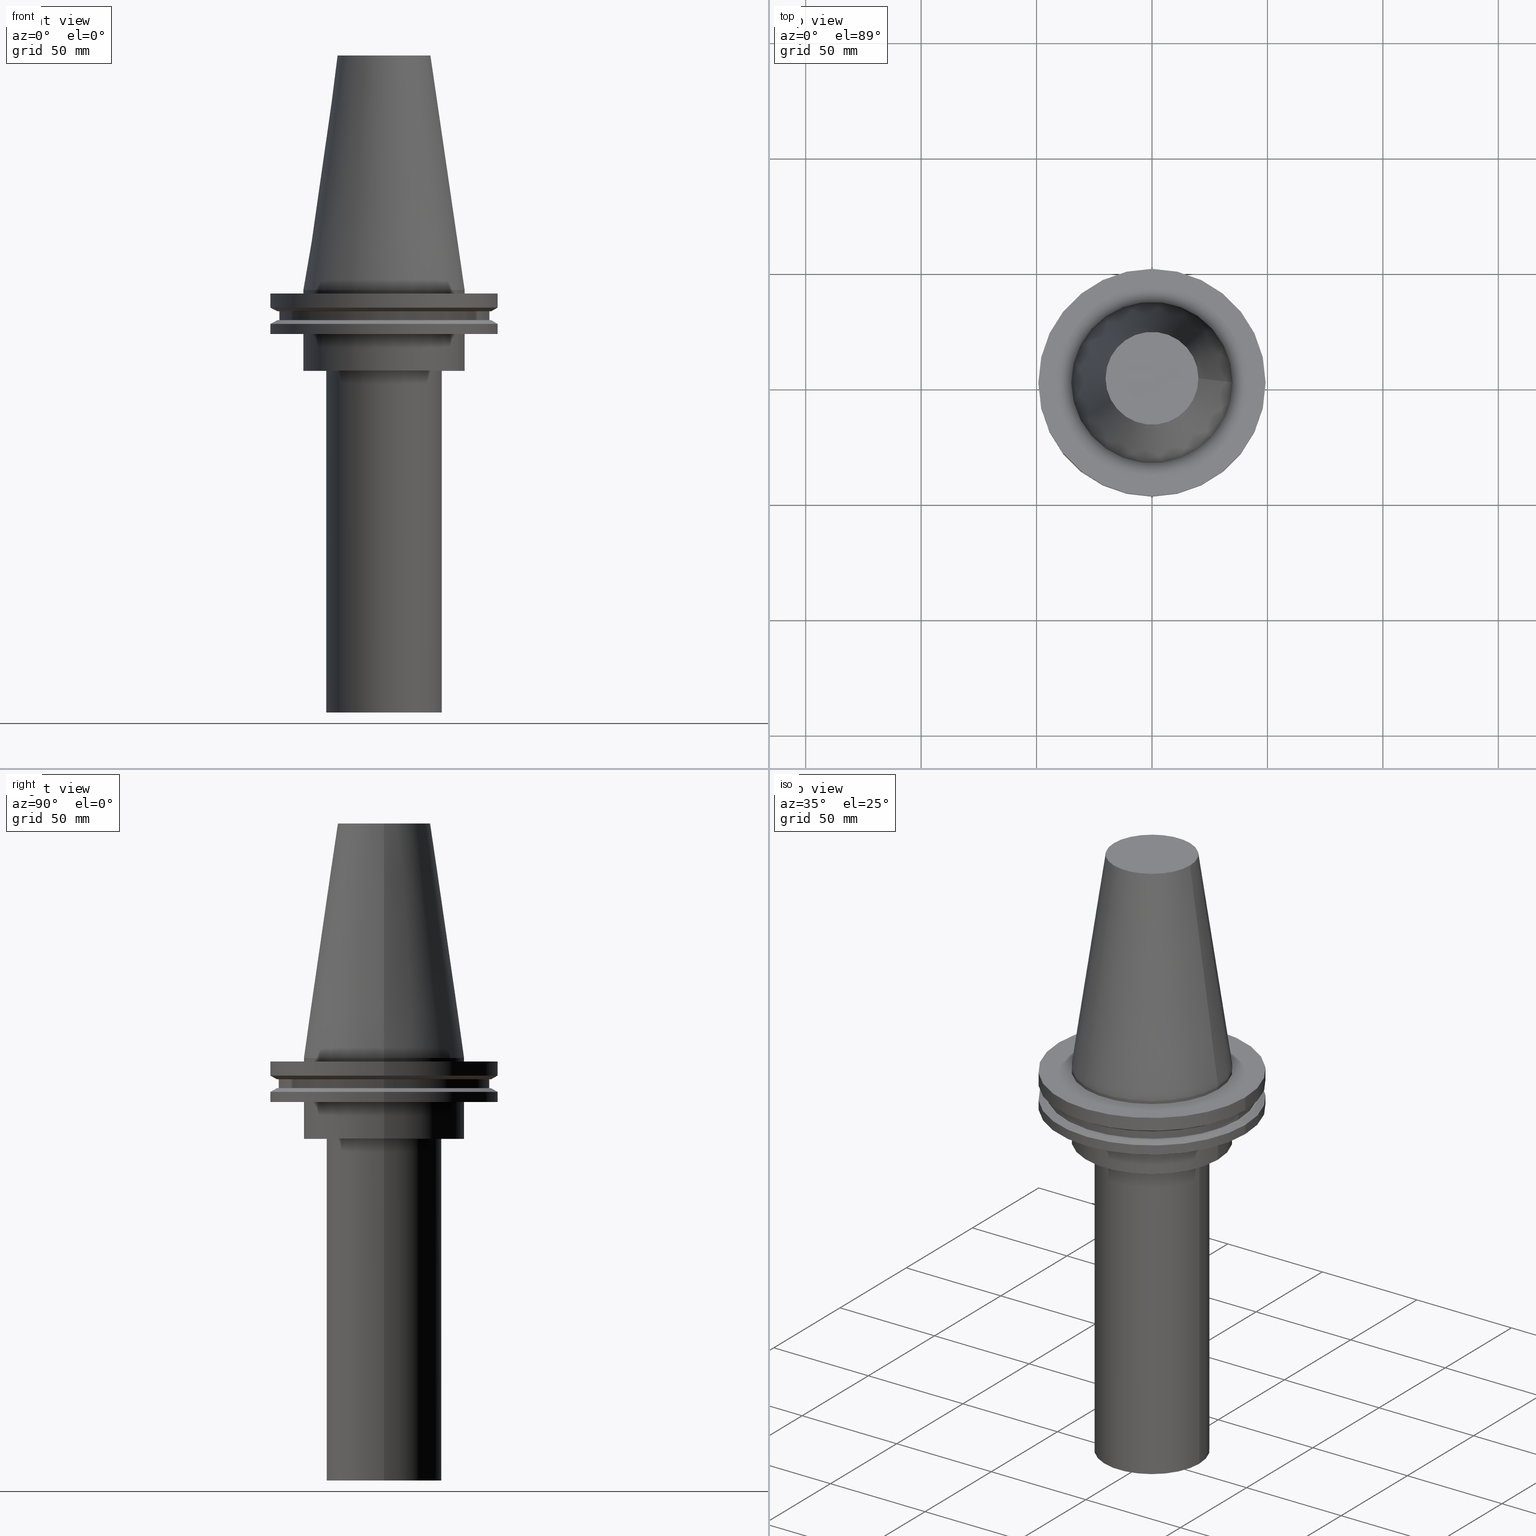
[diagram: canonical four-view strip — front | top / right | iso, engineering-drawing reading convention]
A machine part, canonical four-view strip (front | top / right | iso — engineering-drawing reading convention). The complete STEP part file that produces these views, byte-faithful:
ISO-10303-21;
HEADER;
FILE_DESCRIPTION (( 'STEP AP203' ),
    '1' );
FILE_NAME ('11.326.655.stp',
    '2022-03-09T14:52:03',
    ( '' ),
    ( '' ),
    'SwSTEP 2.0',
    'SolidWorks 2021',
    '' );
FILE_SCHEMA (( 'CONFIG_CONTROL_DESIGN' ));
ENDSEC;

DATA;
#1 = CARTESIAN_POINT ( 'NONE',  ( 49.21499999999999631, 0.000000000000000000, -1.499999999999987566 ) ) ;
#2 = ADVANCED_FACE ( 'NONE', ( #131, #9 ), #220, .T. ) ;
#3 = ORIENTED_EDGE ( 'NONE', *, *, #154, .T. ) ;
#4 = EDGE_LOOP ( 'NONE', ( #249 ) ) ;
#5 = APPLICATION_CONTEXT ( 'configuration controlled 3d designs of mechanical parts and assemblies' ) ;
#6 = DATE_AND_TIME ( #63, #213 ) ;
#7 = FACE_OUTER_BOUND ( 'NONE', #60, .T. ) ;
#8 = CALENDAR_DATE ( 2022, 9, 3 ) ;
#9 = FACE_OUTER_BOUND ( 'NONE', #312, .T. ) ;
#10 = ORIENTED_EDGE ( 'NONE', *, *, #271, .F. ) ;
#11 = DIRECTION ( 'NONE',  ( 1.000000000000000000, 0.000000000000000000, 0.000000000000000000 ) ) ;
#12 =( NAMED_UNIT ( * ) SI_UNIT ( $, .STERADIAN. ) SOLID_ANGLE_UNIT ( ) );
#13 = FACE_OUTER_BOUND ( 'NONE', #174, .T. ) ;
#14 = VERTEX_POINT ( 'NONE', #305 ) ;
#15 = CC_DESIGN_DATE_AND_TIME_ASSIGNMENT ( #126, #245, ( #178 ) ) ;
#16 = AXIS2_PLACEMENT_3D ( 'NONE', #20, #385, #113 ) ;
#17 = DIRECTION ( 'NONE',  ( -0.000000000000000000, -0.000000000000000000, 1.000000000000000000 ) ) ;
#18 = DIRECTION ( 'NONE',  ( -0.000000000000000000, -0.000000000000000000, 1.000000000000000000 ) ) ;
#19 = AXIS2_PLACEMENT_3D ( 'NONE', #200, #290, #195 ) ;
#20 = CARTESIAN_POINT ( 'NONE',  ( 0.000000000000000000, 0.000000000000000000, 101.5999999999999943 ) ) ;
#21 = FACE_BOUND ( 'NONE', #246, .T. ) ;
#22 = DIRECTION ( 'NONE',  ( 0.000000000000000000, 0.000000000000000000, -1.000000000000000000 ) ) ;
#23 = PERSON_AND_ORGANIZATION_ROLE ( 'creator' ) ;
#24 = DIRECTION ( 'NONE',  ( 0.000000000000000000, -0.000000000000000000, 1.000000000000000000 ) ) ;
#25 = ORIENTED_EDGE ( 'NONE', *, *, #183, .T. ) ;
#26 = ADVANCED_FACE ( 'NONE', ( #129, #7 ), #277, .F. ) ;
#27 = DIRECTION ( 'NONE',  ( 1.000000000000000000, 0.000000000000000000, 0.000000000000000000 ) ) ;
#28 = AXIS2_PLACEMENT_3D ( 'NONE', #175, #393, #209 ) ;
#29 = VERTEX_POINT ( 'NONE', #391 ) ;
#30 = CIRCLE ( 'NONE', #345, 25.00000000000000000 ) ;
#31 = AXIS2_PLACEMENT_3D ( 'NONE', #111, #351, #252 ) ;
#32 = ADVANCED_FACE ( 'NONE', ( #340, #100 ), #67, .T. ) ;
#33 = VERTEX_POINT ( 'NONE', #152 ) ;
#34 = CC_DESIGN_APPROVAL ( #394, ( #164 ) ) ;
#35 =( NAMED_UNIT ( * ) PLANE_ANGLE_UNIT ( ) SI_UNIT ( $, .RADIAN. ) );
#36 = EDGE_LOOP ( 'NONE', ( #95 ) ) ;
#37 = COORDINATED_UNIVERSAL_TIME_OFFSET ( 6, 0, .BEHIND. ) ;
#38 = ORIENTED_EDGE ( 'NONE', *, *, #101, .T. ) ;
#39 = EDGE_LOOP ( 'NONE', ( #10 ) ) ;
#40 = EDGE_LOOP ( 'NONE', ( #313 ) ) ;
#41 = UNCERTAINTY_MEASURE_WITH_UNIT (LENGTH_MEASURE( 1.000000000000000082E-05 ), #78, 'distance_accuracy_value', 'NONE');
#42 = CARTESIAN_POINT ( 'NONE',  ( 0.000000000000000000, 34.92499999999999716, -35.00000000000000000 ) ) ;
#43 = CARTESIAN_POINT ( 'NONE',  ( 49.21499999999998920, 0.000000000000000000, -19.04999999999999716 ) ) ;
#44 = DIRECTION ( 'NONE',  ( -0.000000000000000000, -0.000000000000000000, 1.000000000000000000 ) ) ;
#45 = CARTESIAN_POINT ( 'NONE',  ( 0.000000000000000000, 0.000000000000000000, 0.000000000000000000 ) ) ;
#46 = DIRECTION ( 'NONE',  ( 1.000000000000000000, 0.000000000000000000, 0.000000000000000000 ) ) ;
#47 = AXIS2_PLACEMENT_3D ( 'NONE', #45, #122, #133 ) ;
#48 = CALENDAR_DATE ( 2022, 9, 3 ) ;
#49 = AXIS2_PLACEMENT_3D ( 'NONE', #227, #17, #81 ) ;
#50 = CARTESIAN_POINT ( 'NONE',  ( 0.000000000000000000, 0.000000000000000000, -183.0000000000000000 ) ) ;
#51 = FACE_OUTER_BOUND ( 'NONE', #371, .T. ) ;
#52 = DIRECTION ( 'NONE',  ( -0.000000000000000000, -0.000000000000000000, 1.000000000000000000 ) ) ;
#53 = EDGE_CURVE ( 'NONE', #148, #148, #125, .T. ) ;
#54 = DIRECTION ( 'NONE',  ( 1.000000000000000000, 0.000000000000000000, 0.000000000000000000 ) ) ;
#55 = FACE_OUTER_BOUND ( 'NONE', #273, .T. ) ;
#56 = EDGE_LOOP ( 'NONE', ( #157 ) ) ;
#57 = PRODUCT ( '11.326.655', '11.326.655', '', ( #285 ) ) ;
#58 = PLANE ( 'NONE',  #342 ) ;
#59 = DIRECTION ( 'NONE',  ( 1.000000000000000000, 0.000000000000000000, 0.000000000000000000 ) ) ;
#60 = EDGE_LOOP ( 'NONE', ( #279 ) ) ;
#61 = EDGE_CURVE ( 'NONE', #29, #29, #331, .T. ) ;
#62 = AXIS2_PLACEMENT_3D ( 'NONE', #261, #142, #321 ) ;
#63 = CALENDAR_DATE ( 2022, 9, 3 ) ;
#64 = ORIENTED_EDGE ( 'NONE', *, *, #183, .F. ) ;
#65 = CC_DESIGN_APPROVAL ( #248, ( #320 ) ) ;
#66 = CARTESIAN_POINT ( 'NONE',  ( 20.10819343178871321, 0.000000000000000000, 101.5999999999999801 ) ) ;
#67 = CYLINDRICAL_SURFACE ( 'NONE', #146, 34.92499999999999005 ) ;
#68 = AXIS2_PLACEMENT_3D ( 'NONE', #350, #79, #193 ) ;
#69 = APPROVAL_ROLE ( '' ) ;
#70 = CARTESIAN_POINT ( 'NONE',  ( 0.000000000000000000, 0.000000000000000000, -35.00000000000000000 ) ) ;
#71 = CC_DESIGN_DATE_AND_TIME_ASSIGNMENT ( #291, #224, ( #320 ) ) ;
#72 = EDGE_CURVE ( 'NONE', #90, #90, #302, .T. ) ;
#73 = EDGE_CURVE ( 'NONE', #296, #296, #189, .T. ) ;
#74 = ORIENTED_EDGE ( 'NONE', *, *, #76, .T. ) ;
#75 = DESIGN_CONTEXT ( 'detailed design', #5, 'design' ) ;
#76 = EDGE_CURVE ( 'NONE', #272, #272, #283, .T. ) ;
#77 = DIRECTION ( 'NONE',  ( -0.000000000000000000, -0.000000000000000000, 1.000000000000000000 ) ) ;
#78 =( LENGTH_UNIT ( ) NAMED_UNIT ( * ) SI_UNIT ( .MILLI., .METRE. ) );
#79 = DIRECTION ( 'NONE',  ( -0.000000000000000000, -0.000000000000000000, 1.000000000000000000 ) ) ;
#80 = DIRECTION ( 'NONE',  ( 1.000000000000000000, 0.000000000000000000, 0.000000000000000000 ) ) ;
#81 = DIRECTION ( 'NONE',  ( 1.000000000000000000, 0.000000000000000000, 0.000000000000000000 ) ) ;
#82 = AXIS2_PLACEMENT_3D ( 'NONE', #42, #124, #244 ) ;
#83 = DIRECTION ( 'NONE',  ( 1.000000000000000000, 0.000000000000000000, 0.000000000000000000 ) ) ;
#84 = CIRCLE ( 'NONE', #49, 34.92499999999999005 ) ;
#85 = FACE_OUTER_BOUND ( 'NONE', #247, .T. ) ;
#86 = APPROVAL_PERSON_ORGANIZATION ( #386, #248, #324 ) ;
#87 = EDGE_CURVE ( 'NONE', #343, #343, #382, .T. ) ;
#88 = DIRECTION ( 'NONE',  ( 0.000000000000000000, -0.000000000000000000, 1.000000000000000000 ) ) ;
#89 = APPROVAL ( #94, 'UNSPECIFIED' ) ;
#90 = VERTEX_POINT ( 'NONE', #207 ) ;
#91 = CARTESIAN_POINT ( 'NONE',  ( 0.000000000000000000, 25.00000000000000000, -183.0000000000000000 ) ) ;
#92 = PLANE ( 'NONE',  #217 ) ;
#93 = EDGE_LOOP ( 'NONE', ( #25 ) ) ;
#94 = APPROVAL_STATUS ( 'not_yet_approved' ) ;
#95 = ORIENTED_EDGE ( 'NONE', *, *, #141, .F. ) ;
#96 = CARTESIAN_POINT ( 'NONE',  ( 45.64500000000000313, 0.000000000000000000, -9.204999999999991189 ) ) ;
#97 = EDGE_LOOP ( 'NONE', ( #219 ) ) ;
#98 = AXIS2_PLACEMENT_3D ( 'NONE', #362, #365, #115 ) ;
#99 = PERSON_AND_ORGANIZATION ( #390, #116 ) ;
#100 = FACE_OUTER_BOUND ( 'NONE', #153, .T. ) ;
#101 = EDGE_CURVE ( 'NONE', #368, #368, #311, .T. ) ;
#102 = CONICAL_SURFACE ( 'NONE', #28, 49.21499999999998920, 1.047197551196554333 ) ;
#103 = ORIENTED_EDGE ( 'NONE', *, *, #154, .F. ) ;
#104 = MANIFOLD_SOLID_BREP ( 'CKB', #250 ) ;
#105 = ORIENTED_EDGE ( 'NONE', *, *, #87, .F. ) ;
#106 = EDGE_CURVE ( 'NONE', #14, #14, #363, .T. ) ;
#107 = DIRECTION ( 'NONE',  ( -0.000000000000000000, -0.000000000000000000, 1.000000000000000000 ) ) ;
#108 = VERTEX_POINT ( 'NONE', #66 ) ;
#109 = DIRECTION ( 'NONE',  ( 1.000000000000000000, 0.000000000000000000, 0.000000000000000000 ) ) ;
#110 = DIRECTION ( 'NONE',  ( -0.000000000000000000, -0.000000000000000000, 1.000000000000000000 ) ) ;
#111 = CARTESIAN_POINT ( 'NONE',  ( 0.000000000000000000, 0.000000000000000000, -19.04999999999999716 ) ) ;
#112 = CC_DESIGN_PERSON_AND_ORGANIZATION_ASSIGNMENT ( #339, #308, ( #178 ) ) ;
#113 = DIRECTION ( 'NONE',  ( 1.000000000000000000, 0.000000000000000000, 0.000000000000000000 ) ) ;
#114 = AXIS2_PLACEMENT_3D ( 'NONE', #384, #44, #46 ) ;
#115 = DIRECTION ( 'NONE',  ( -1.000000000000000000, 0.000000000000000000, -0.000000000000000000 ) ) ;
#116 = ORGANIZATION ( 'UNSPECIFIED', 'UNSPECIFIED', '' ) ;
#117 = FACE_OUTER_BOUND ( 'NONE', #36, .T. ) ;
#118 = DIRECTION ( 'NONE',  ( 0.000000000000000000, -0.000000000000000000, 1.000000000000000000 ) ) ;
#119 = DIRECTION ( 'NONE',  ( -0.000000000000000000, -0.000000000000000000, 1.000000000000000000 ) ) ;
#120 = EDGE_LOOP ( 'NONE', ( #204 ) ) ;
#121 = DIRECTION ( 'NONE',  ( -0.000000000000000000, -0.000000000000000000, 1.000000000000000000 ) ) ;
#122 = DIRECTION ( 'NONE',  ( 0.000000000000000000, 0.000000000000000000, 1.000000000000000000 ) ) ;
#123 = EDGE_LOOP ( 'NONE', ( #374 ) ) ;
#124 = DIRECTION ( 'NONE',  ( 0.000000000000000000, -0.000000000000000000, 1.000000000000000000 ) ) ;
#125 = CIRCLE ( 'NONE', #206, 34.92499999999999716 ) ;
#126 = DATE_AND_TIME ( #8, #307 ) ;
#127 = ORIENTED_EDGE ( 'NONE', *, *, #271, .T. ) ;
#128 = CC_DESIGN_SECURITY_CLASSIFICATION ( #320, ( #164 ) ) ;
#129 = FACE_BOUND ( 'NONE', #56, .T. ) ;
#130 = AXIS2_PLACEMENT_3D ( 'NONE', #356, #135, #83 ) ;
#131 = FACE_OUTER_BOUND ( 'NONE', #191, .T. ) ;
#132 = DIRECTION ( 'NONE',  ( -0.000000000000000000, -0.000000000000000000, 1.000000000000000000 ) ) ;
#133 = DIRECTION ( 'NONE',  ( 1.000000000000000000, 0.000000000000000000, 0.000000000000000000 ) ) ;
#134 = AXIS2_PLACEMENT_3D ( 'NONE', #329, #121, #54 ) ;
#135 = DIRECTION ( 'NONE',  ( -0.000000000000000000, -0.000000000000000000, 1.000000000000000000 ) ) ;
#136 = VERTEX_POINT ( 'NONE', #43 ) ;
#137 = CYLINDRICAL_SURFACE ( 'NONE', #355, 34.92499999999999716 ) ;
#138 = AXIS2_PLACEMENT_3D ( 'NONE', #325, #107, #11 ) ;
#139 = DIRECTION ( 'NONE',  ( 1.000000000000000000, 0.000000000000000000, 0.000000000000000000 ) ) ;
#140 = PRODUCT_RELATED_PRODUCT_CATEGORY ( 'detail', '', ( #57 ) ) ;
#141 = EDGE_CURVE ( 'NONE', #254, #254, #30, .T. ) ;
#142 = DIRECTION ( 'NONE',  ( -0.000000000000000000, -0.000000000000000000, 1.000000000000000000 ) ) ;
#143 = SECURITY_CLASSIFICATION_LEVEL ( 'unclassified' ) ;
#144 = CYLINDRICAL_SURFACE ( 'NONE', #134, 49.21499999999999631 ) ;
#145 = ADVANCED_FACE ( 'NONE', ( #287, #160 ), #167, .F. ) ;
#146 = AXIS2_PLACEMENT_3D ( 'NONE', #186, #309, #344 ) ;
#147 = FACE_OUTER_BOUND ( 'NONE', #242, .T. ) ;
#148 = VERTEX_POINT ( 'NONE', #266 ) ;
#149 = EDGE_LOOP ( 'NONE', ( #301 ) ) ;
#150 = DIRECTION ( 'NONE',  ( 1.000000000000000000, 0.000000000000000000, 0.000000000000000000 ) ) ;
#151 = CARTESIAN_POINT ( 'NONE',  ( 34.92499999999999005, 0.000000000000000000, 0.000000000000000000 ) ) ;
#152 = CARTESIAN_POINT ( 'NONE',  ( 49.21500000000000341, 0.000000000000000000, -7.602389855251287187 ) ) ;
#153 = EDGE_LOOP ( 'NONE', ( #275 ) ) ;
#154 = EDGE_CURVE ( 'NONE', #136, #136, #199, .T. ) ;
#155 = EDGE_LOOP ( 'NONE', ( #348 ) ) ;
#156 = AXIS2_PLACEMENT_3D ( 'NONE', #381, #319, #192 ) ;
#157 = ORIENTED_EDGE ( 'NONE', *, *, #141, .T. ) ;
#158 = EDGE_CURVE ( 'NONE', #161, #161, #395, .T. ) ;
#159 = EDGE_LOOP ( 'NONE', ( #375 ) ) ;
#160 = FACE_OUTER_BOUND ( 'NONE', #239, .T. ) ;
#161 = VERTEX_POINT ( 'NONE', #96 ) ;
#162 = DIRECTION ( 'NONE',  ( 1.000000000000000000, 0.000000000000000000, 0.000000000000000000 ) ) ;
#163 = APPLICATION_PROTOCOL_DEFINITION ( 'international standard', 'config_control_design', 1994, #336 ) ;
#164 = PRODUCT_DEFINITION_FORMATION_WITH_SPECIFIED_SOURCE ( 'ANY', '', #57, .NOT_KNOWN. ) ;
#165 = FACE_OUTER_BOUND ( 'NONE', #39, .T. ) ;
#166 = AXIS2_PLACEMENT_3D ( 'NONE', #233, #231, #292 ) ;
#167 = PLANE ( 'NONE',  #304 ) ;
#168 = CYLINDRICAL_SURFACE ( 'NONE', #16, 45.64500000000000313 ) ;
#169 = EDGE_CURVE ( 'NONE', #303, #303, #84, .T. ) ;
#170 = FACE_OUTER_BOUND ( 'NONE', #155, .T. ) ;
#171 = APPROVAL_DATE_TIME ( #358, #248 ) ;
#172 = PLANE ( 'NONE',  #353 ) ;
#173 = FACE_OUTER_BOUND ( 'NONE', #366, .T. ) ;
#174 = EDGE_LOOP ( 'NONE', ( #214 ) ) ;
#175 = CARTESIAN_POINT ( 'NONE',  ( 0.000000000000000000, 0.000000000000000000, -14.65761014474876944 ) ) ;
#176 = ORIENTED_EDGE ( 'NONE', *, *, #61, .F. ) ;
#177 = AXIS2_PLACEMENT_3D ( 'NONE', #179, #24, #300 ) ;
#178 = PRODUCT_DEFINITION ( 'UNKNOWN', '', #164, #75 ) ;
#179 = CARTESIAN_POINT ( 'NONE',  ( 0.000000000000000000, 49.21499999999998920, -19.04999999999999716 ) ) ;
#180 = CIRCLE ( 'NONE', #130, 49.21500000000000341 ) ;
#181 = CARTESIAN_POINT ( 'NONE',  ( 25.00000000000000000, 0.000000000000000000, -35.00000000000000000 ) ) ;
#182 = AXIS2_PLACEMENT_3D ( 'NONE', #346, #190, #315 ) ;
#183 = EDGE_CURVE ( 'NONE', #108, #108, #299, .T. ) ;
#184 = PERSON_AND_ORGANIZATION_ROLE ( 'design_owner' ) ;
#185 = ORIENTED_EDGE ( 'NONE', *, *, #101, .F. ) ;
#186 = CARTESIAN_POINT ( 'NONE',  ( 0.000000000000000000, 0.000000000000000000, 101.5999999999999943 ) ) ;
#187 = CARTESIAN_POINT ( 'NONE',  ( 46.43919780457007818, 0.000000000000000000, -9.204999999999991189 ) ) ;
#188 = DIRECTION ( 'NONE',  ( -0.000000000000000000, -0.000000000000000000, 1.000000000000000000 ) ) ;
#189 = CIRCLE ( 'NONE', #62, 34.92499999999999005 ) ;
#190 = DIRECTION ( 'NONE',  ( -0.000000000000000000, -0.000000000000000000, 1.000000000000000000 ) ) ;
#191 = EDGE_LOOP ( 'NONE', ( #176 ) ) ;
#192 = DIRECTION ( 'NONE',  ( 1.000000000000000000, 0.000000000000000000, 0.000000000000000000 ) ) ;
#193 = DIRECTION ( 'NONE',  ( 1.000000000000000000, 0.000000000000000000, 0.000000000000000000 ) ) ;
#194 = CC_DESIGN_PERSON_AND_ORGANIZATION_ASSIGNMENT ( #360, #262, ( #320 ) ) ;
#195 = DIRECTION ( 'NONE',  ( 1.000000000000000000, 0.000000000000000000, 0.000000000000000000 ) ) ;
#196 = ADVANCED_FACE ( 'NONE', ( #165, #349 ), #137, .T. ) ;
#197 = AXIS2_PLACEMENT_3D ( 'NONE', #359, #119, #59 ) ;
#198 = CARTESIAN_POINT ( 'NONE',  ( 0.000000000000000000, 49.21499999999999631, -1.499999999999992895 ) ) ;
#199 = CIRCLE ( 'NONE', #31, 49.21499999999998920 ) ;
#200 = CARTESIAN_POINT ( 'NONE',  ( 0.000000000000000000, 0.000000000000000000, -13.05499999999999794 ) ) ;
#201 = SHAPE_DEFINITION_REPRESENTATION ( #298, #318 ) ;
#202 = FACE_BOUND ( 'NONE', #4, .T. ) ;
#203 = LOCAL_TIME ( 8, 52, 3.000000000000000000, #328 ) ;
#204 = ORIENTED_EDGE ( 'NONE', *, *, #87, .T. ) ;
#205 = DIRECTION ( 'NONE',  ( -1.000000000000000000, 0.000000000000000000, -0.000000000000000000 ) ) ;
#206 = AXIS2_PLACEMENT_3D ( 'NONE', #70, #188, #139 ) ;
#207 = CARTESIAN_POINT ( 'NONE',  ( 46.43919780457007818, 0.000000000000000000, -13.05499999999999794 ) ) ;
#208 = DIRECTION ( 'NONE',  ( 1.000000000000000000, 0.000000000000000000, 0.000000000000000000 ) ) ;
#209 = DIRECTION ( 'NONE',  ( -1.000000000000000000, 0.000000000000000000, 0.000000000000000000 ) ) ;
#210 = ADVANCED_FACE ( 'NONE', ( #51, #13 ), #168, .T. ) ;
#211 = ORIENTED_EDGE ( 'NONE', *, *, #158, .F. ) ;
#212 = COORDINATED_UNIVERSAL_TIME_OFFSET ( 6, 0, .BEHIND. ) ;
#213 = LOCAL_TIME ( 8, 52, 3.000000000000000000, #212 ) ;
#214 = ORIENTED_EDGE ( 'NONE', *, *, #106, .T. ) ;
#215 = APPROVAL_PERSON_ORGANIZATION ( #99, #394, #69 ) ;
#216 = APPROVAL_STATUS ( 'not_yet_approved' ) ;
#217 = AXIS2_PLACEMENT_3D ( 'NONE', #364, #118, #27 ) ;
#218 = EDGE_LOOP ( 'NONE', ( #64 ) ) ;
#219 = ORIENTED_EDGE ( 'NONE', *, *, #73, .T. ) ;
#220 = CYLINDRICAL_SURFACE ( 'NONE', #182, 49.21499999999998920 ) ;
#221 = DIRECTION ( 'NONE',  ( -0.000000000000000000, -0.000000000000000000, 1.000000000000000000 ) ) ;
#222 = CARTESIAN_POINT ( 'NONE',  ( 34.92499999999999716, 0.000000000000000000, -19.04999999999999716 ) ) ;
#223 = DIRECTION ( 'NONE',  ( -1.000000000000000000, 0.000000000000000000, -0.000000000000000000 ) ) ;
#224 = DATE_TIME_ROLE ( 'classification_date' ) ;
#225 = DIRECTION ( 'NONE',  ( 1.000000000000000000, 0.000000000000000000, 0.000000000000000000 ) ) ;
#226 = DATE_AND_TIME ( #388, #341 ) ;
#227 = CARTESIAN_POINT ( 'NONE',  ( 0.000000000000000000, 0.000000000000000000, -1.499999999999987566 ) ) ;
#228 = APPROVAL_DATE_TIME ( #226, #394 ) ;
#229 = DIRECTION ( 'NONE',  ( 1.000000000000000000, 0.000000000000000000, 0.000000000000000000 ) ) ;
#230 = CALENDAR_DATE ( 2022, 9, 3 ) ;
#231 = DIRECTION ( 'NONE',  ( 0.000000000000000000, 0.000000000000000000, -1.000000000000000000 ) ) ;
#232 = PERSON_AND_ORGANIZATION ( #390, #116 ) ;
#233 = CARTESIAN_POINT ( 'NONE',  ( 0.000000000000000000, 0.000000000000000000, 0.000000000000000000 ) ) ;
#234 = CONICAL_SURFACE ( 'NONE', #166, 34.92499999999999005, 0.1448138465474119452 ) ;
#235 = CARTESIAN_POINT ( 'NONE',  ( 0.000000000000000000, 0.000000000000000000, 0.000000000000000000 ) ) ;
#236 = AXIS2_PLACEMENT_3D ( 'NONE', #282, #221, #260 ) ;
#237 = FACE_OUTER_BOUND ( 'NONE', #149, .T. ) ;
#238 = EDGE_CURVE ( 'NONE', #33, #33, #180, .T. ) ;
#239 = EDGE_LOOP ( 'NONE', ( #74 ) ) ;
#240 = EDGE_LOOP ( 'NONE', ( #338 ) ) ;
#241 = APPLICATION_PROTOCOL_DEFINITION ( 'international standard', 'config_control_design', 1994, #5 ) ;
#242 = EDGE_LOOP ( 'NONE', ( #268 ) ) ;
#243 = APPROVAL_DATE_TIME ( #6, #89 ) ;
#244 = DIRECTION ( 'NONE',  ( 1.000000000000000000, 0.000000000000000000, 0.000000000000000000 ) ) ;
#245 = DATE_TIME_ROLE ( 'creation_date' ) ;
#246 = EDGE_LOOP ( 'NONE', ( #367 ) ) ;
#247 = EDGE_LOOP ( 'NONE', ( #105 ) ) ;
#248 = APPROVAL ( #322, 'UNSPECIFIED' ) ;
#249 = ORIENTED_EDGE ( 'NONE', *, *, #72, .F. ) ;
#250 = CLOSED_SHELL ( 'NONE', ( #265, #357, #26, #196, #380, #2, #326, #377, #210, #314, #253, #347, #145, #32, #334, #281 ) ) ;
#251 = AXIS2_PLACEMENT_3D ( 'NONE', #289, #18, #229 ) ;
#252 = DIRECTION ( 'NONE',  ( 1.000000000000000000, 0.000000000000000000, 0.000000000000000000 ) ) ;
#253 = ADVANCED_FACE ( 'NONE', ( #256, #379 ), #361, .T. ) ;
#254 = VERTEX_POINT ( 'NONE', #181 ) ;
#255 = APPROVAL_PERSON_ORGANIZATION ( #370, #89, #337 ) ;
#256 = FACE_OUTER_BOUND ( 'NONE', #40, .T. ) ;
#257 = CARTESIAN_POINT ( 'NONE',  ( 34.92499999999999005, 0.000000000000000000, -1.499999999999987566 ) ) ;
#258 = FACE_BOUND ( 'NONE', #218, .T. ) ;
#259 = AXIS2_PLACEMENT_3D ( 'NONE', #50, #132, #109 ) ;
#260 = DIRECTION ( 'NONE',  ( 1.000000000000000000, 0.000000000000000000, 0.000000000000000000 ) ) ;
#261 = CARTESIAN_POINT ( 'NONE',  ( 0.000000000000000000, 0.000000000000000000, 0.000000000000000000 ) ) ;
#262 = PERSON_AND_ORGANIZATION_ROLE ( 'classification_officer' ) ;
#263 = FACE_OUTER_BOUND ( 'NONE', #93, .T. ) ;
#264 = FACE_BOUND ( 'NONE', #240, .T. ) ;
#265 = ADVANCED_FACE ( 'NONE', ( #258, #389 ), #234, .T. ) ;
#266 = CARTESIAN_POINT ( 'NONE',  ( 34.92499999999999716, 0.000000000000000000, -35.00000000000000000 ) ) ;
#267 = LOCAL_TIME ( 8, 52, 3.000000000000000000, #294 ) ;
#268 = ORIENTED_EDGE ( 'NONE', *, *, #61, .T. ) ;
#269 = CIRCLE ( 'NONE', #197, 34.92499999999999716 ) ;
#270 = CYLINDRICAL_SURFACE ( 'NONE', #373, 25.00000000000000000 ) ;
#271 = EDGE_CURVE ( 'NONE', #335, #335, #269, .T. ) ;
#272 = VERTEX_POINT ( 'NONE', #1 ) ;
#273 = EDGE_LOOP ( 'NONE', ( #185 ) ) ;
#274 = ORIENTED_EDGE ( 'NONE', *, *, #73, .F. ) ;
#275 = ORIENTED_EDGE ( 'NONE', *, *, #169, .T. ) ;
#276 = PERSON_AND_ORGANIZATION ( #390, #116 ) ;
#277 = PLANE ( 'NONE',  #82 ) ;
#278 = CC_DESIGN_PERSON_AND_ORGANIZATION_ASSIGNMENT ( #232, #23, ( #164 ) ) ;
#279 = ORIENTED_EDGE ( 'NONE', *, *, #53, .F. ) ;
#280 = ORIENTED_EDGE ( 'NONE', *, *, #76, .F. ) ;
#281 = ADVANCED_FACE ( 'NONE', ( #85 ), #58, .F. ) ;
#282 = CARTESIAN_POINT ( 'NONE',  ( 0.000000000000000000, 0.000000000000000000, -13.05499999999999794 ) ) ;
#283 = CIRCLE ( 'NONE', #114, 49.21499999999999631 ) ;
#284 = DIRECTION ( 'NONE',  ( 0.000000000000000000, 0.000000000000000000, -1.000000000000000000 ) ) ;
#285 = MECHANICAL_CONTEXT ( 'NONE', #336, 'mechanical' ) ;
#286 = CC_DESIGN_APPROVAL ( #89, ( #178 ) ) ;
#287 = FACE_BOUND ( 'NONE', #159, .T. ) ;
#288 = PERSON_AND_ORGANIZATION ( #390, #116 ) ;
#289 = CARTESIAN_POINT ( 'NONE',  ( 0.000000000000000000, 0.000000000000000000, -9.204999999999991189 ) ) ;
#290 = DIRECTION ( 'NONE',  ( -0.000000000000000000, -0.000000000000000000, 1.000000000000000000 ) ) ;
#291 = DATE_AND_TIME ( #48, #267 ) ;
#292 = DIRECTION ( 'NONE',  ( -1.000000000000000000, 0.000000000000000000, 0.000000000000000000 ) ) ;
#293 = CARTESIAN_POINT ( 'NONE',  ( 0.000000000000000000, 45.64500000000000313, -13.05499999999999794 ) ) ;
#294 = COORDINATED_UNIVERSAL_TIME_OFFSET ( 6, 0, .BEHIND. ) ;
#295 = FACE_BOUND ( 'NONE', #297, .T. ) ;
#296 = VERTEX_POINT ( 'NONE', #151 ) ;
#297 = EDGE_LOOP ( 'NONE', ( #127 ) ) ;
#298 = PRODUCT_DEFINITION_SHAPE ( 'NONE', 'NONE',  #178 ) ;
#299 = CIRCLE ( 'NONE', #392, 20.10819343178871321 ) ;
#300 = DIRECTION ( 'NONE',  ( 1.000000000000000000, 0.000000000000000000, 0.000000000000000000 ) ) ;
#301 = ORIENTED_EDGE ( 'NONE', *, *, #238, .T. ) ;
#302 = CIRCLE ( 'NONE', #19, 46.43919780457007818 ) ;
#303 = VERTEX_POINT ( 'NONE', #257 ) ;
#304 = AXIS2_PLACEMENT_3D ( 'NONE', #198, #284, #223 ) ;
#305 = CARTESIAN_POINT ( 'NONE',  ( 45.64500000000000313, 0.000000000000000000, -13.05499999999999794 ) ) ;
#306 = EDGE_LOOP ( 'NONE', ( #280 ) ) ;
#307 = LOCAL_TIME ( 8, 52, 3.000000000000000000, #37 ) ;
#308 = PERSON_AND_ORGANIZATION_ROLE ( 'creator' ) ;
#309 = DIRECTION ( 'NONE',  ( -0.000000000000000000, -0.000000000000000000, 1.000000000000000000 ) ) ;
#310 = CC_DESIGN_PERSON_AND_ORGANIZATION_ASSIGNMENT ( #288, #383, ( #164 ) ) ;
#311 = CIRCLE ( 'NONE', #138, 46.43919780457007818 ) ;
#312 = EDGE_LOOP ( 'NONE', ( #3 ) ) ;
#313 = ORIENTED_EDGE ( 'NONE', *, *, #238, .F. ) ;
#314 = ADVANCED_FACE ( 'NONE', ( #55, #21 ), #92, .F. ) ;
#315 = DIRECTION ( 'NONE',  ( 1.000000000000000000, 0.000000000000000000, 0.000000000000000000 ) ) ;
#316 = COORDINATED_UNIVERSAL_TIME_OFFSET ( 6, 0, .BEHIND. ) ;
#317 = CARTESIAN_POINT ( 'NONE',  ( 0.000000000000000000, 0.000000000000000000, -35.00000000000000000 ) ) ;
#318 = ADVANCED_BREP_SHAPE_REPRESENTATION ( '11.326.655', ( #104, #47 ), #372 ) ;
#319 = DIRECTION ( 'NONE',  ( -0.000000000000000000, -0.000000000000000000, 1.000000000000000000 ) ) ;
#320 = SECURITY_CLASSIFICATION ( '', '', #143 ) ;
#321 = DIRECTION ( 'NONE',  ( 1.000000000000000000, 0.000000000000000000, 0.000000000000000000 ) ) ;
#322 = APPROVAL_STATUS ( 'not_yet_approved' ) ;
#323 = CARTESIAN_POINT ( 'NONE',  ( 0.000000000000000000, 0.000000000000000000, 101.5999999999999801 ) ) ;
#324 = APPROVAL_ROLE ( '' ) ;
#325 = CARTESIAN_POINT ( 'NONE',  ( 0.000000000000000000, 0.000000000000000000, -9.204999999999991189 ) ) ;
#326 = ADVANCED_FACE ( 'NONE', ( #202, #147 ), #102, .T. ) ;
#327 = FACE_OUTER_BOUND ( 'NONE', #306, .T. ) ;
#328 = COORDINATED_UNIVERSAL_TIME_OFFSET ( 6, 0, .BEHIND. ) ;
#329 = CARTESIAN_POINT ( 'NONE',  ( 0.000000000000000000, 0.000000000000000000, 101.5999999999999943 ) ) ;
#330 = EDGE_LOOP ( 'NONE', ( #38 ) ) ;
#331 = CIRCLE ( 'NONE', #156, 49.21499999999998920 ) ;
#332 = FACE_OUTER_BOUND ( 'NONE', #120, .T. ) ;
#333 = PLANE ( 'NONE',  #177 ) ;
#334 = ADVANCED_FACE ( 'NONE', ( #117, #332 ), #270, .T. ) ;
#335 = VERTEX_POINT ( 'NONE', #222 ) ;
#336 = APPLICATION_CONTEXT ( 'configuration controlled 3d designs of mechanical parts and assemblies' ) ;
#337 = APPROVAL_ROLE ( '' ) ;
#338 = ORIENTED_EDGE ( 'NONE', *, *, #106, .F. ) ;
#339 = PERSON_AND_ORGANIZATION ( #390, #116 ) ;
#340 = FACE_OUTER_BOUND ( 'NONE', #369, .T. ) ;
#341 = LOCAL_TIME ( 8, 52, 3.000000000000000000, #316 ) ;
#342 = AXIS2_PLACEMENT_3D ( 'NONE', #91, #88, #150 ) ;
#343 = VERTEX_POINT ( 'NONE', #378 ) ;
#344 = DIRECTION ( 'NONE',  ( 1.000000000000000000, 0.000000000000000000, 0.000000000000000000 ) ) ;
#345 = AXIS2_PLACEMENT_3D ( 'NONE', #317, #110, #225 ) ;
#346 = CARTESIAN_POINT ( 'NONE',  ( 0.000000000000000000, 0.000000000000000000, 101.5999999999999943 ) ) ;
#347 = ADVANCED_FACE ( 'NONE', ( #327, #237 ), #144, .T. ) ;
#348 = ORIENTED_EDGE ( 'NONE', *, *, #72, .T. ) ;
#349 = FACE_OUTER_BOUND ( 'NONE', #123, .T. ) ;
#350 = CARTESIAN_POINT ( 'NONE',  ( 0.000000000000000000, 0.000000000000000000, -9.204999999999991189 ) ) ;
#351 = DIRECTION ( 'NONE',  ( -0.000000000000000000, -0.000000000000000000, 1.000000000000000000 ) ) ;
#352 = CC_DESIGN_PERSON_AND_ORGANIZATION_ASSIGNMENT ( #276, #184, ( #57 ) ) ;
#353 = AXIS2_PLACEMENT_3D ( 'NONE', #293, #22, #205 ) ;
#354 = CARTESIAN_POINT ( 'NONE',  ( 0.000000000000000000, 0.000000000000000000, 101.5999999999999943 ) ) ;
#355 = AXIS2_PLACEMENT_3D ( 'NONE', #354, #77, #162 ) ;
#356 = CARTESIAN_POINT ( 'NONE',  ( 0.000000000000000000, 0.000000000000000000, -7.602389855251287187 ) ) ;
#357 = ADVANCED_FACE ( 'NONE', ( #263 ), #387, .F. ) ;
#358 = DATE_AND_TIME ( #230, #203 ) ;
#359 = CARTESIAN_POINT ( 'NONE',  ( 0.000000000000000000, 0.000000000000000000, -19.04999999999999716 ) ) ;
#360 = PERSON_AND_ORGANIZATION ( #390, #116 ) ;
#361 = CONICAL_SURFACE ( 'NONE', #68, 46.43919780457007818, 1.047197551196575205 ) ;
#362 = CARTESIAN_POINT ( 'NONE',  ( 0.000000000000000000, 20.10819343178871321, 101.5999999999999943 ) ) ;
#363 = CIRCLE ( 'NONE', #236, 45.64500000000000313 ) ;
#364 = CARTESIAN_POINT ( 'NONE',  ( 0.000000000000000000, 46.43919780457007818, -9.204999999999998295 ) ) ;
#365 = DIRECTION ( 'NONE',  ( 0.000000000000000000, 0.000000000000000000, -1.000000000000000000 ) ) ;
#366 = EDGE_LOOP ( 'NONE', ( #103 ) ) ;
#367 = ORIENTED_EDGE ( 'NONE', *, *, #158, .T. ) ;
#368 = VERTEX_POINT ( 'NONE', #187 ) ;
#369 = EDGE_LOOP ( 'NONE', ( #274 ) ) ;
#370 = PERSON_AND_ORGANIZATION ( #390, #116 ) ;
#371 = EDGE_LOOP ( 'NONE', ( #211 ) ) ;
#372 =( GEOMETRIC_REPRESENTATION_CONTEXT ( 3 ) GLOBAL_UNCERTAINTY_ASSIGNED_CONTEXT ( ( #41 ) ) GLOBAL_UNIT_ASSIGNED_CONTEXT ( ( #78, #35, #12 ) ) REPRESENTATION_CONTEXT ( 'NONE', 'WORKASPACE' ) );
#373 = AXIS2_PLACEMENT_3D ( 'NONE', #235, #52, #208 ) ;
#374 = ORIENTED_EDGE ( 'NONE', *, *, #53, .T. ) ;
#375 = ORIENTED_EDGE ( 'NONE', *, *, #169, .F. ) ;
#376 = DIRECTION ( 'NONE',  ( -0.000000000000000000, -0.000000000000000000, 1.000000000000000000 ) ) ;
#377 = ADVANCED_FACE ( 'NONE', ( #264, #170 ), #172, .F. ) ;
#378 = CARTESIAN_POINT ( 'NONE',  ( 25.00000000000000000, 0.000000000000000000, -183.0000000000000000 ) ) ;
#379 = FACE_BOUND ( 'NONE', #330, .T. ) ;
#380 = ADVANCED_FACE ( 'NONE', ( #173, #295 ), #333, .F. ) ;
#381 = CARTESIAN_POINT ( 'NONE',  ( 0.000000000000000000, 0.000000000000000000, -14.65761014474876944 ) ) ;
#382 = CIRCLE ( 'NONE', #259, 25.00000000000000000 ) ;
#383 = PERSON_AND_ORGANIZATION_ROLE ( 'design_supplier' ) ;
#384 = CARTESIAN_POINT ( 'NONE',  ( 0.000000000000000000, 0.000000000000000000, -1.499999999999987566 ) ) ;
#385 = DIRECTION ( 'NONE',  ( -0.000000000000000000, -0.000000000000000000, 1.000000000000000000 ) ) ;
#386 = PERSON_AND_ORGANIZATION ( #390, #116 ) ;
#387 = PLANE ( 'NONE',  #98 ) ;
#388 = CALENDAR_DATE ( 2022, 9, 3 ) ;
#389 = FACE_OUTER_BOUND ( 'NONE', #97, .T. ) ;
#390 = PERSON ( 'UNSPECIFIED', 'UNSPECIFIED', 'UNSPECIFIED', ('UNSPECIFIED'), ('UNSPECIFIED'), ('UNSPECIFIED') ) ;
#391 = CARTESIAN_POINT ( 'NONE',  ( 49.21499999999998920, 0.000000000000000000, -14.65761014474876944 ) ) ;
#392 = AXIS2_PLACEMENT_3D ( 'NONE', #323, #376, #80 ) ;
#393 = DIRECTION ( 'NONE',  ( 0.000000000000000000, 0.000000000000000000, -1.000000000000000000 ) ) ;
#394 = APPROVAL ( #216, 'UNSPECIFIED' ) ;
#395 = CIRCLE ( 'NONE', #251, 45.64500000000000313 ) ;
ENDSEC;
END-ISO-10303-21;
